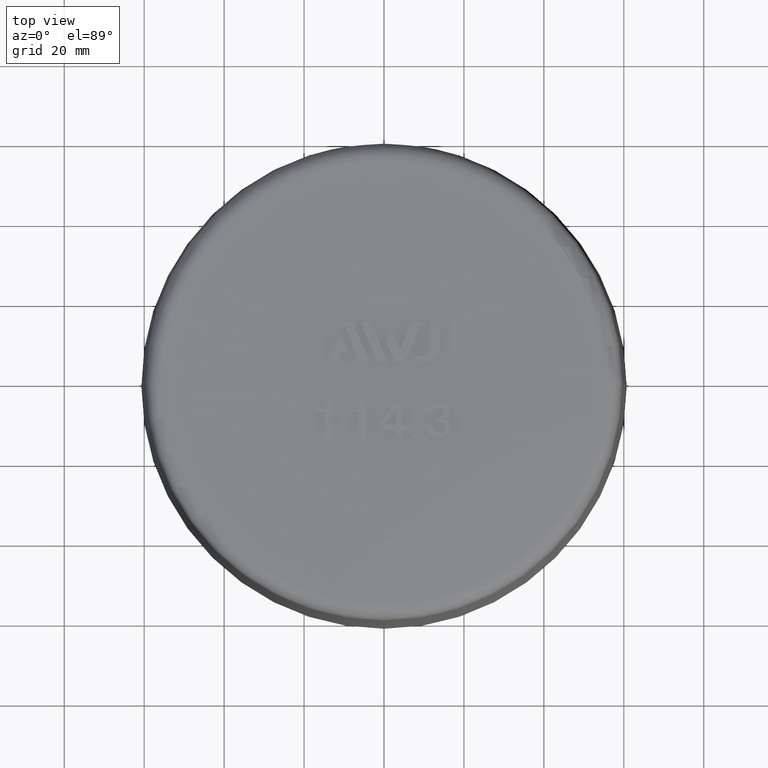
[diagram: clean part render]
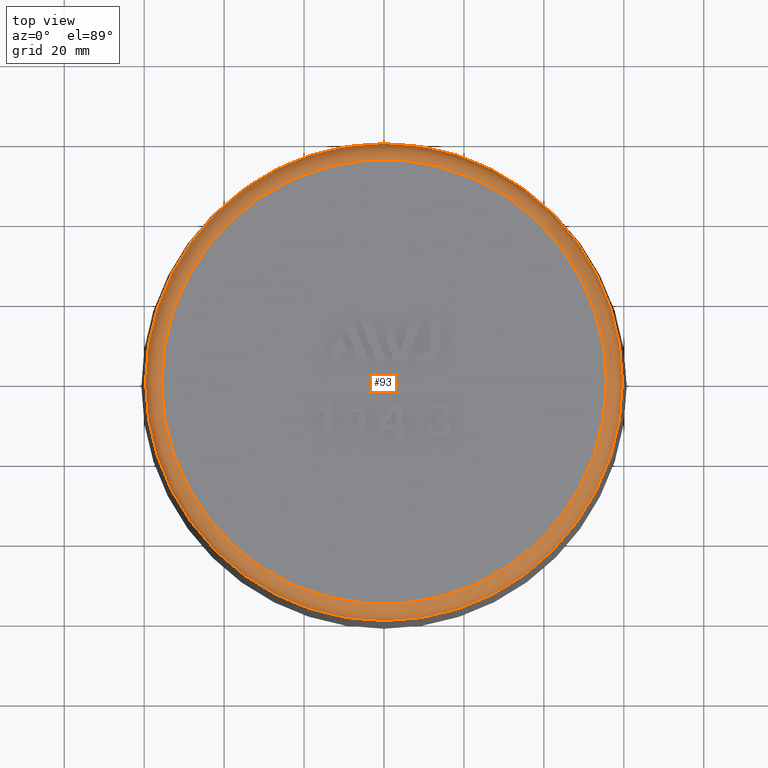
[diagram: same view with one face highlighted and labeled with its STEP entity id]
A machine part, top view. The second image highlights one B-rep face of the part: STEP entity #93.
In plain terms, the highlighted toroidal blend (fillet) surface has major radius 55.6437 mm and minor (blend) radius 4 mm.
Its self-contained STEP definition (entity closure, byte-faithful):
#93 = ADVANCED_FACE( '', ( #207, #208 ), #209, .T. );
#207 = FACE_OUTER_BOUND( '', #394, .T. );
#208 = FACE_OUTER_BOUND( '', #395, .T. );
#209 = TOROIDAL_SURFACE( '', #396, 55.6436507890378, 4.00000000000000 );
#394 = EDGE_LOOP( '', ( #740 ) );
#395 = EDGE_LOOP( '', ( #741 ) );
#396 = AXIS2_PLACEMENT_3D( '', #742, #743, #744 );
#740 = ORIENTED_EDGE( '', *, *, #1275, .F. );
#741 = ORIENTED_EDGE( '', *, *, #1343, .T. );
#742 = CARTESIAN_POINT( '', ( -3.61258874377601E-015, 0.000000000000000, 59.0000000000000 ) );
#743 = DIRECTION( '', ( -6.12303176911189E-017, 0.000000000000000, 1.00000000000000 ) );
#744 = DIRECTION( '', ( 1.00000000000000, 0.000000000000000, 6.12303176911189E-017 ) );
#1275 = EDGE_CURVE( '', #1512, #1512, #1513, .T. );
#1343 = EDGE_CURVE( '', #1634, #1634, #1635, .T. );
#1512 = VERTEX_POINT( '', #1947 );
#1513 = CIRCLE( '', #1948, 55.6436507890378 );
#1634 = VERTEX_POINT( '', #2222 );
#1635 = CIRCLE( '', #2223, 59.6430415696633 );
#1947 = CARTESIAN_POINT( '', ( 55.6436507890378, 0.000000000000000, 63.0000000000000 ) );
#1948 = AXIS2_PLACEMENT_3D( '', #2491, #2492, #2493 );
#2222 = CARTESIAN_POINT( '', ( 59.6430415696633, 0.000000000000000, 59.0698096257491 ) );
#2223 = AXIS2_PLACEMENT_3D( '', #2529, #2530, #2531 );
#2491 = CARTESIAN_POINT( '', ( -3.85751001454049E-015, 0.000000000000000, 63.0000000000000 ) );
#2492 = DIRECTION( '', ( -6.12303176911189E-017, 0.000000000000000, 1.00000000000000 ) );
#2493 = DIRECTION( '', ( 1.00000000000000, 0.000000000000000, 6.12303176911189E-017 ) );
#2529 = CARTESIAN_POINT( '', ( -3.61686320933853E-015, 0.000000000000000, 59.0698096257491 ) );
#2530 = DIRECTION( '', ( -6.12303176911189E-017, 0.000000000000000, 1.00000000000000 ) );
#2531 = DIRECTION( '', ( 1.00000000000000, 0.000000000000000, 6.12303176911189E-017 ) );